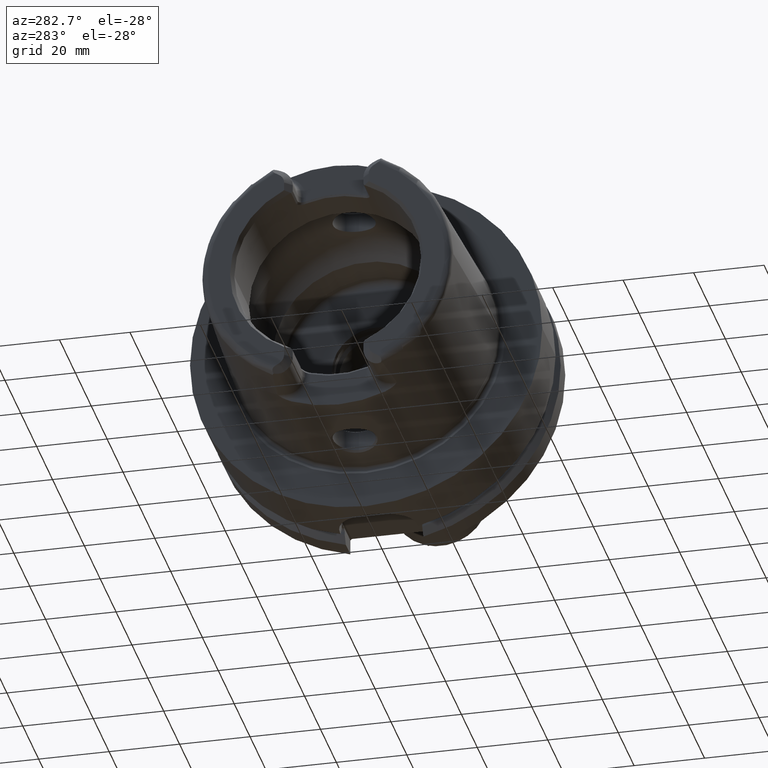
[diagram: clean part render]
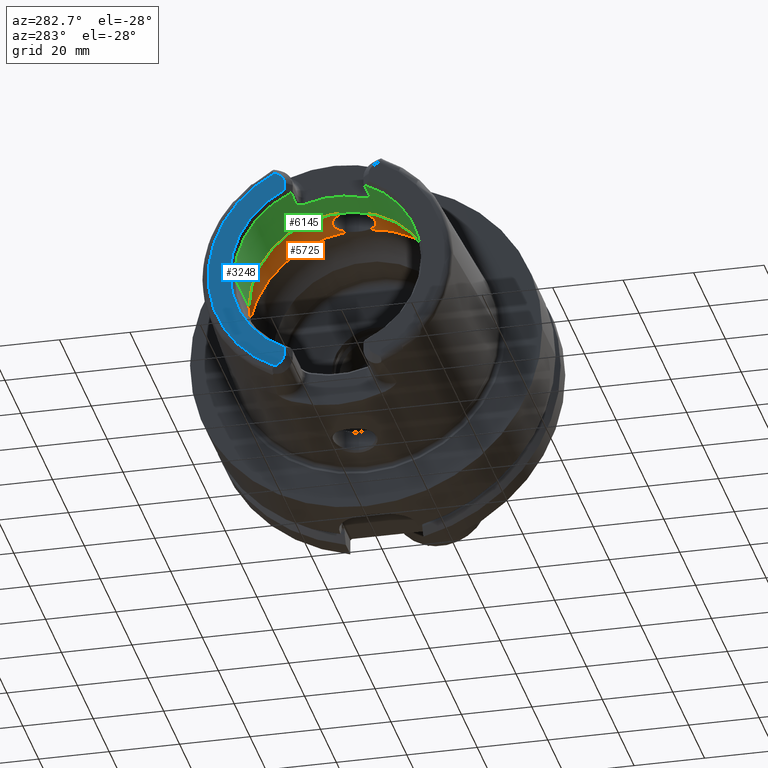
[diagram: same view with three faces highlighted in distinct colors, each labeled with its STEP entity id]
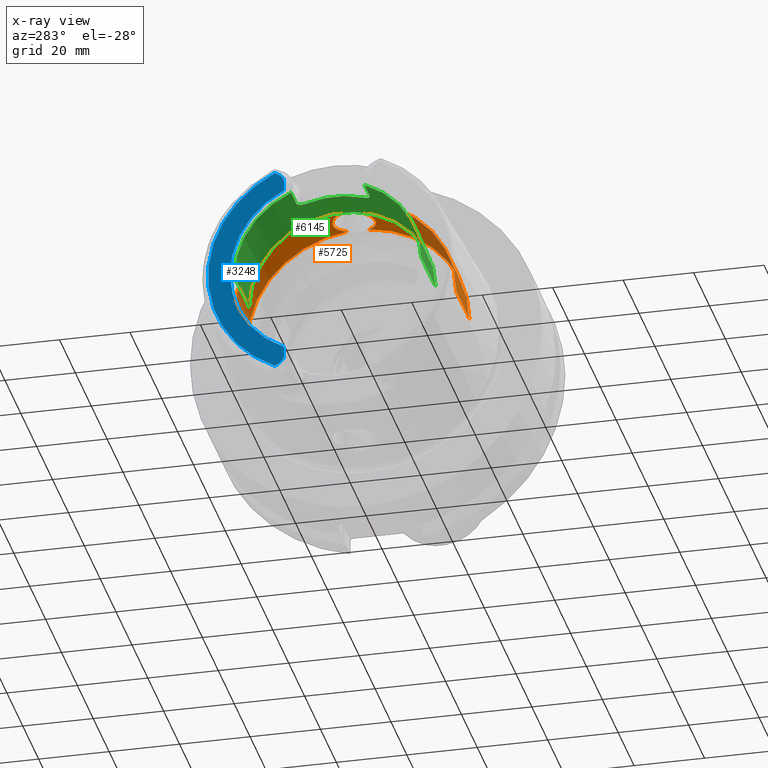
[diagram: x-ray of the same camera — body ghosted, the three highlighted faces saturated]
A machine part, auxiliary view with three faces highlighted in distinct colors.
The next image is the same camera in x-ray (body ghosted, the three faces saturated) — at least one of them is partly hidden behind the body in this view.
Their STEP definitions:

[orange] entity #5725 — the highlighted cylindrical surface (partial cylindrical patch) has radius 31.5 mm, axis along (1, 0, 0).
#2069=CARTESIAN_POINT('',(-9.846794344809E0,3.073185883624E0,3.134972932139E1));
#2071=CARTESIAN_POINT('',(-9.846794344809E0,-3.073185883624E0,
3.134972932139E1));
#2085=CARTESIAN_POINT('',(-9.846794344809E0,3.073185883624E0,3.134972932139E1));
#2086=CARTESIAN_POINT('',(-9.979350610583E0,3.295460007053E0,3.132793998818E1));
#2087=CARTESIAN_POINT('',(-1.027063887730E1,3.719249728918E0,3.128166137702E1));
#2088=CARTESIAN_POINT('',(-1.079035808135E1,4.298920478732E0,3.120689190392E1));
#2089=CARTESIAN_POINT('',(-1.137898274965E1,4.805041081809E0,3.113254787077E1));
#2090=CARTESIAN_POINT('',(-1.202658779818E1,5.230450418473E0,3.106351678434E1));
#2091=CARTESIAN_POINT('',(-1.271973952812E1,5.567575114105E0,3.100453126817E1));
#2092=CARTESIAN_POINT('',(-1.345035493347E1,5.813488696578E0,3.095911024256E1));
#2093=CARTESIAN_POINT('',(-1.420764120587E1,5.964169161635E0,3.093027187856E1));
#2094=CARTESIAN_POINT('',(-1.497984446875E1,6.016521870398E0,3.092007259785E1));
#2095=CARTESIAN_POINT('',(-1.575309935594E1,5.969543750814E0,3.092922961197E1));
#2096=CARTESIAN_POINT('',(-1.652541066125E1,5.820717381311E0,3.095775345043E1));
#2097=CARTESIAN_POINT('',(-1.727341934717E1,5.571094163642E0,3.100391709528E1));
#2098=CARTESIAN_POINT('',(-1.797719195757E1,5.228690177102E0,3.106382935769E1));
#2099=CARTESIAN_POINT('',(-1.863207171596E1,4.797562142056E0,3.113375842146E1));
#2100=CARTESIAN_POINT('',(-1.923624043330E1,4.274224967480E0,3.121040427516E1));
#2101=CARTESIAN_POINT('',(-1.976613927382E1,3.673557002686E0,3.128721124755E1));
#2102=CARTESIAN_POINT('',(-2.020637808011E1,3.016563255921E0,3.135771603394E1));
#2103=CARTESIAN_POINT('',(-2.055582787998E1,2.311076998962E0,3.141795380196E1));
#2104=CARTESIAN_POINT('',(-2.081257397864E1,1.557663843048E0,3.146462805191E1));
#2105=CARTESIAN_POINT('',(-2.096662575255E1,7.779183163064E-1,
3.149361665994E1));
#2106=CARTESIAN_POINT('',(-2.1E1,2.599995876471E-1,3.15E1));
#2107=CARTESIAN_POINT('',(-2.1E1,0.E0,3.15E1));
#2109=CARTESIAN_POINT('',(-9.846794344809E0,0.E0,0.E0));
#2110=DIRECTION('',(1.E0,0.E0,0.E0));
#2111=DIRECTION('',(0.E0,1.E0,0.E0));
#2112=AXIS2_PLACEMENT_3D('',#2109,#2110,#2111);
#2114=CARTESIAN_POINT('',(-9.846794344809E0,0.E0,0.E0));
#2115=DIRECTION('',(1.E0,0.E0,0.E0));
#2116=DIRECTION('',(0.E0,-9.756145662299E-2,9.952295022665E-1));
#2117=AXIS2_PLACEMENT_3D('',#2114,#2115,#2116);
#2119=CARTESIAN_POINT('',(-2.1E1,0.E0,3.15E1));
#2120=CARTESIAN_POINT('',(-2.1E1,-2.571227322628E-1,3.15E1));
#2121=CARTESIAN_POINT('',(-2.096736472421E1,-7.693984126219E-1,
3.149375838501E1));
#2122=CARTESIAN_POINT('',(-2.081659080202E1,-1.541049857093E0,
3.146537963405E1));
#2123=CARTESIAN_POINT('',(-2.056550243220E1,-2.286682308644E0,
3.141968549161E1));
#2124=CARTESIAN_POINT('',(-2.022340587255E1,-2.986151195866E0,
3.136058293097E1));
#2125=CARTESIAN_POINT('',(-1.979326828629E1,-3.637340617479E0,
3.129140992251E1));
#2126=CARTESIAN_POINT('',(-1.927478905529E1,-4.235071698102E0,
3.121573223434E1));
#2127=CARTESIAN_POINT('',(-1.868247740736E1,-4.758599460883E0,
3.113974969594E1));
#2128=CARTESIAN_POINT('',(-1.803686661027E1,-5.194005287447E0,
3.106967109408E1));
#2129=CARTESIAN_POINT('',(-1.734161583992E1,-5.542612510908E0,
3.100904668501E1));
#2130=CARTESIAN_POINT('',(-1.659831672384E1,-5.801097428712E0,
3.096145823760E1));
#2131=CARTESIAN_POINT('',(-1.582796267308E1,-5.959654019058E0,
3.093114785940E1));
#2132=CARTESIAN_POINT('',(-1.505461105168E1,-6.016295452388E0,
3.092011677740E1));
#2133=CARTESIAN_POINT('',(-1.428037054876E1,-5.973681036842E0,
3.092842594800E1));
#2134=CARTESIAN_POINT('',(-1.350797364848E1,-5.829331845562E0,
3.095612333536E1));
#2135=CARTESIAN_POINT('',(-1.275967231567E1,-5.584336729774E0,
3.100151619127E1));
#2136=CARTESIAN_POINT('',(-1.205825931241E1,-5.248465876117E0,
3.106046672590E1));
#2137=CARTESIAN_POINT('',(-1.140515180586E1,-4.825059400574E0,
3.112945635419E1));
#2138=CARTESIAN_POINT('',(-1.080442776173E1,-4.313579447853E0,
3.120492076547E1));
#2139=CARTESIAN_POINT('',(-1.027427619122E1,-3.724621952008E0,
3.128107616940E1));
#2140=CARTESIAN_POINT('',(-9.980265351482E0,-3.296993870656E0,
3.132778962490E1));
#2141=CARTESIAN_POINT('',(-9.846794344809E0,-3.073185883624E0,
3.134972932139E1));
#2196=DIRECTION('',(-1.E0,0.E0,0.E0));
#2197=VECTOR('',#2196,1.640380457843E1);
#2198=CARTESIAN_POINT('',(-9.846794344809E0,-3.15E1,0.E0));
#2199=LINE('',#2198,#2197);
#2200=DIRECTION('',(-1.E0,0.E0,0.E0));
#2201=VECTOR('',#2200,1.640380457843E1);
#2202=CARTESIAN_POINT('',(-9.846794344809E0,3.15E1,0.E0));
#2203=LINE('',#2202,#2201);
#2453=CARTESIAN_POINT('',(-2.625059892324E1,0.E0,0.E0));
#2454=DIRECTION('',(1.E0,0.E0,0.E0));
#2455=DIRECTION('',(0.E0,1.E0,0.E0));
#2456=AXIS2_PLACEMENT_3D('',#2453,#2454,#2455);
#2735=CARTESIAN_POINT('',(-9.846794344809E0,3.15E1,0.E0));
#2736=VERTEX_POINT('',#2735);
#2737=CARTESIAN_POINT('',(-2.625059892324E1,3.15E1,0.E0));
#2738=VERTEX_POINT('',#2737);
#2747=CARTESIAN_POINT('',(-9.846794344809E0,-3.15E1,0.E0));
#2748=VERTEX_POINT('',#2747);
#2749=CARTESIAN_POINT('',(-2.625059892324E1,-3.15E1,0.E0));
#2750=VERTEX_POINT('',#2749);
#2915=VERTEX_POINT('',#2069);
#2916=VERTEX_POINT('',#2071);
#2917=VERTEX_POINT('',#2107);
#5708=CARTESIAN_POINT('',(-5.3125E1,0.E0,0.E0));
#5709=DIRECTION('',(1.E0,0.E0,0.E0));
#5710=DIRECTION('',(0.E0,-1.E0,0.E0));
#5711=AXIS2_PLACEMENT_3D('',#5708,#5709,#5710);
#5712=CYLINDRICAL_SURFACE('',#5711,3.15E1);
#5713=ORIENTED_EDGE('',*,*,#5667,.F.);
#5714=ORIENTED_EDGE('',*,*,#5703,.F.);
#5716=ORIENTED_EDGE('',*,*,#5715,.T.);
#5718=ORIENTED_EDGE('',*,*,#5717,.T.);
#5720=ORIENTED_EDGE('',*,*,#5719,.F.);
#5721=ORIENTED_EDGE('',*,*,#5695,.F.);
#5722=ORIENTED_EDGE('',*,*,#5389,.F.);
#5723=EDGE_LOOP('',(#5713,#5714,#5716,#5718,#5720,#5721,#5722));
#5724=FACE_OUTER_BOUND('',#5723,.F.);
#5725=ADVANCED_FACE('',(#5724),#5712,.F.);
#2108=B_SPLINE_CURVE_WITH_KNOTS('',3,(#2085,#2086,#2087,#2088,#2089,#2090,#2091,
#2092,#2093,#2094,#2095,#2096,#2097,#2098,#2099,#2100,#2101,#2102,#2103,#2104,
#2105,#2106,#2107),.UNSPECIFIED.,.F.,.F.,(4,1,1,1,1,1,1,1,1,1,1,1,1,1,1,1,1,1,1,
1,4),(0.E0,5.E-2,1.E-1,1.5E-1,2.E-1,2.5E-1,3.E-1,3.5E-1,4.E-1,4.5E-1,5.E-1,
5.5E-1,6.E-1,6.5E-1,7.E-1,7.5E-1,8.E-1,8.5E-1,9.E-1,9.5E-1,1.E0),.UNSPECIFIED.);
#2113=CIRCLE('',#2112,3.15E1);
#2118=CIRCLE('',#2117,3.15E1);
#2142=B_SPLINE_CURVE_WITH_KNOTS('',3,(#2119,#2120,#2121,#2122,#2123,#2124,#2125,
#2126,#2127,#2128,#2129,#2130,#2131,#2132,#2133,#2134,#2135,#2136,#2137,#2138,
#2139,#2140,#2141),.UNSPECIFIED.,.F.,.F.,(4,1,1,1,1,1,1,1,1,1,1,1,1,1,1,1,1,1,1,
1,4),(0.E0,5.E-2,1.E-1,1.5E-1,2.E-1,2.5E-1,3.E-1,3.5E-1,4.E-1,4.5E-1,5.E-1,
5.5E-1,6.E-1,6.5E-1,7.E-1,7.5E-1,8.E-1,8.5E-1,9.E-1,9.5E-1,1.E0),.UNSPECIFIED.);
#2457=CIRCLE('',#2456,3.15E1);
#5389=EDGE_CURVE('',#2917,#2916,#2142,.T.);
#5667=EDGE_CURVE('',#2915,#2917,#2108,.T.);
#5695=EDGE_CURVE('',#2916,#2748,#2118,.T.);
#5703=EDGE_CURVE('',#2736,#2915,#2113,.T.);
#5715=EDGE_CURVE('',#2736,#2738,#2203,.T.);
#5717=EDGE_CURVE('',#2738,#2750,#2457,.T.);
#5719=EDGE_CURVE('',#2748,#2750,#2199,.T.);

[blue] entity #3248 — the highlighted planar face has unit normal (1, 0, 0).
#100=DIRECTION('',(0.E0,0.E0,1.E0));
#101=VECTOR('',#100,2.370180025047E0);
#102=CARTESIAN_POINT('',(-5.E1,1.201E1,-2.696E1));
#103=LINE('',#102,#101);
#104=CARTESIAN_POINT('',(-5.E1,1.501E1,-2.696E1));
#105=DIRECTION('',(1.E0,0.E0,0.E0));
#106=DIRECTION('',(0.E0,-1.E0,0.E0));
#107=AXIS2_PLACEMENT_3D('',#104,#105,#106);
#109=DIRECTION('',(0.E0,-8.533905854017E-1,5.212720103245E-1));
#110=VECTOR('',#109,1.392150953463E0);
#111=CARTESIAN_POINT('',(-5.E1,1.463423248617E1,-3.024586108239E1));
#112=LINE('',#111,#110);
#113=DIRECTION('',(0.E0,-8.533905854017E-1,-5.212720103245E-1));
#114=VECTOR('',#113,1.392150953463E0);
#115=CARTESIAN_POINT('',(-5.E1,1.463423248617E1,3.024586108239E1));
#116=LINE('',#115,#114);
#117=CARTESIAN_POINT('',(-5.E1,1.501E1,2.696E1));
#118=DIRECTION('',(-1.E0,0.E0,0.E0));
#119=DIRECTION('',(0.E0,-1.E0,0.E0));
#120=AXIS2_PLACEMENT_3D('',#117,#118,#119);
#122=DIRECTION('',(0.E0,0.E0,1.E0));
#123=VECTOR('',#122,2.370180025047E0);
#124=CARTESIAN_POINT('',(-5.E1,1.201E1,2.458981997495E1));
#125=LINE('',#124,#123);
#157=CARTESIAN_POINT('',(-5.E1,0.E0,0.E0));
#158=DIRECTION('',(1.E0,0.E0,0.E0));
#159=DIRECTION('',(0.E0,4.388653384185E-1,-8.985528447091E-1));
#160=AXIS2_PLACEMENT_3D('',#157,#158,#159);
#340=CARTESIAN_POINT('',(-5.E1,0.E0,0.E0));
#341=DIRECTION('',(-1.E0,0.E0,0.E0));
#342=DIRECTION('',(0.E0,4.355401503799E-1,9.001693048572E-1));
#343=AXIS2_PLACEMENT_3D('',#340,#341,#342);
#2783=CARTESIAN_POINT('',(-5.E1,1.201E1,2.458981997495E1));
#2784=CARTESIAN_POINT('',(-5.E1,1.201E1,2.696E1));
#2785=VERTEX_POINT('',#2783);
#2786=VERTEX_POINT('',#2784);
#2787=CARTESIAN_POINT('',(-5.E1,1.344618396903E1,2.952017175621E1));
#2788=VERTEX_POINT('',#2787);
#2789=CARTESIAN_POINT('',(-5.E1,1.463423248617E1,3.024586108239E1));
#2790=VERTEX_POINT('',#2789);
#2874=CARTESIAN_POINT('',(-5.E1,1.201E1,-2.696E1));
#2875=CARTESIAN_POINT('',(-5.E1,1.201E1,-2.458981997495E1));
#2876=VERTEX_POINT('',#2874);
#2877=VERTEX_POINT('',#2875);
#2878=CARTESIAN_POINT('',(-5.E1,1.344618396903E1,-2.952017175621E1));
#2879=VERTEX_POINT('',#2878);
#2880=CARTESIAN_POINT('',(-5.E1,1.463423248617E1,-3.024586108239E1));
#2881=VERTEX_POINT('',#2880);
#3225=CARTESIAN_POINT('',(-5.E1,0.E0,0.E0));
#3226=DIRECTION('',(1.E0,0.E0,0.E0));
#3227=DIRECTION('',(0.E0,-1.E0,0.E0));
#3228=AXIS2_PLACEMENT_3D('',#3225,#3226,#3227);
#3229=PLANE('',#3228);
#3231=ORIENTED_EDGE('',*,*,#3230,.F.);
#3233=ORIENTED_EDGE('',*,*,#3232,.T.);
#3235=ORIENTED_EDGE('',*,*,#3234,.F.);
#3237=ORIENTED_EDGE('',*,*,#3236,.F.);
#3239=ORIENTED_EDGE('',*,*,#3238,.T.);
#3241=ORIENTED_EDGE('',*,*,#3240,.F.);
#3243=ORIENTED_EDGE('',*,*,#3242,.F.);
#3245=ORIENTED_EDGE('',*,*,#3244,.F.);
#3246=EDGE_LOOP('',(#3231,#3233,#3235,#3237,#3239,#3241,#3243,#3245));
#3247=FACE_OUTER_BOUND('',#3246,.F.);
#3248=ADVANCED_FACE('',(#3247),#3229,.F.);
#108=CIRCLE('',#107,3.E0);
#121=CIRCLE('',#120,3.E0);
#161=CIRCLE('',#160,2.736602540378E1);
#344=CIRCLE('',#343,3.360019156306E1);
#3230=EDGE_CURVE('',#2876,#2877,#103,.T.);
#3232=EDGE_CURVE('',#2876,#2879,#108,.T.);
#3234=EDGE_CURVE('',#2881,#2879,#112,.T.);
#3236=EDGE_CURVE('',#2790,#2881,#344,.T.);
#3238=EDGE_CURVE('',#2790,#2788,#116,.T.);
#3240=EDGE_CURVE('',#2786,#2788,#121,.T.);
#3242=EDGE_CURVE('',#2785,#2786,#125,.T.);
#3244=EDGE_CURVE('',#2877,#2785,#161,.T.);

[green] entity #6145 — the highlighted cylindrical surface (partial cylindrical patch) has radius 26.5 mm, axis along (1, 0, 0).
#165=CARTESIAN_POINT('',(-4.85E1,1.051E1,2.432673220965E1));
#167=CARTESIAN_POINT('',(-4.85E1,0.E0,0.E0));
#168=DIRECTION('',(1.E0,0.E0,0.E0));
#169=DIRECTION('',(0.E0,1.E0,0.E0));
#170=AXIS2_PLACEMENT_3D('',#167,#168,#169);
#187=CARTESIAN_POINT('',(-4.85E1,0.E0,0.E0));
#188=DIRECTION('',(1.E0,0.E0,0.E0));
#189=DIRECTION('',(0.E0,-3.966037735849E-1,9.179898947038E-1));
#190=AXIS2_PLACEMENT_3D('',#187,#188,#189);
#192=CARTESIAN_POINT('',(-4.85E1,-1.051E1,2.432673220965E1));
#513=DIRECTION('',(-1.E0,0.E0,0.E0));
#514=VECTOR('',#513,1.849662432703E1);
#515=CARTESIAN_POINT('',(-3.000337567297E1,2.65E1,0.E0));
#516=LINE('',#515,#514);
#522=DIRECTION('',(-1.E0,0.E0,0.E0));
#523=VECTOR('',#522,1.849662432703E1);
#524=CARTESIAN_POINT('',(-3.000337567297E1,-2.65E1,0.E0));
#525=LINE('',#524,#523);
#2476=DIRECTION('',(1.E0,0.E0,0.E0));
#2477=VECTOR('',#2476,6.380229667746E0);
#2478=CARTESIAN_POINT('',(-4.838022966775E1,1.039022966775E1,2.437812805470E1));
#2479=LINE('',#2478,#2477);
#2480=CARTESIAN_POINT('',(-3.971132486541E1,8.01E0,2.526044140549E1));
#2481=CARTESIAN_POINT('',(-3.970878365387E1,8.120563234658E0,2.522538218006E1));
#2482=CARTESIAN_POINT('',(-3.971906599640E1,8.340498761E0,2.515406323082E1));
#2483=CARTESIAN_POINT('',(-3.978267622202E1,8.672586520936E0,2.504149237513E1));
#2484=CARTESIAN_POINT('',(-3.989268945815E1,8.989467647893E0,2.492938353432E1));
#2485=CARTESIAN_POINT('',(-4.004052322956E1,9.277750297847E0,2.482340953473E1));
#2486=CARTESIAN_POINT('',(-4.022199090024E1,9.537479373845E0,2.472468297046E1));
#2487=CARTESIAN_POINT('',(-4.043924040036E1,9.773195748073E0,2.463237051391E1));
#2488=CARTESIAN_POINT('',(-4.069196362011E1,9.980705213938E0,2.454892857931E1));
#2489=CARTESIAN_POINT('',(-4.098453186625E1,1.015759575717E1,2.447617541728E1));
#2490=CARTESIAN_POINT('',(-4.132143240488E1,1.029570459017E1,2.441829554688E1));
#2491=CARTESIAN_POINT('',(-4.167918985613E1,1.037618705973E1,2.438412368561E1));
#2492=CARTESIAN_POINT('',(-4.189481839478E1,1.039022966775E1,2.437812805470E1));
#2493=CARTESIAN_POINT('',(-4.2E1,1.039022966775E1,2.437812805470E1));
#2495=CARTESIAN_POINT('',(-3.971132486541E1,-8.01E0,2.526044140549E1));
#2496=CARTESIAN_POINT('',(-3.971132486541E1,-7.271271578955E0,
2.549468967366E1));
#2497=CARTESIAN_POINT('',(-3.971132486546E1,-5.773250992792E0,
2.589833317849E1));
#2498=CARTESIAN_POINT('',(-3.971132486544E1,-3.481810319461E0,
2.630458298809E1));
#2499=CARTESIAN_POINT('',(-3.971132486544E1,-1.163586982585E0,
2.650849211583E1));
#2500=CARTESIAN_POINT('',(-3.971132486544E1,1.163586982585E0,2.650849211583E1));
#2501=CARTESIAN_POINT('',(-3.971132486544E1,3.481810319461E0,2.630458298809E1));
#2502=CARTESIAN_POINT('',(-3.971132486546E1,5.773250992791E0,2.589833317849E1));
#2503=CARTESIAN_POINT('',(-3.971132486541E1,7.271271578958E0,2.549468967366E1));
#2504=CARTESIAN_POINT('',(-3.971132486541E1,8.01E0,2.526044140549E1));
#2506=CARTESIAN_POINT('',(-4.2E1,-1.039022966775E1,2.437812805470E1));
#2507=CARTESIAN_POINT('',(-4.189375760304E1,-1.039022966775E1,
2.437812805470E1));
#2508=CARTESIAN_POINT('',(-4.167635124759E1,-1.037592175927E1,
2.438423721529E1));
#2509=CARTESIAN_POINT('',(-4.131623052643E1,-1.029415408513E1,
2.441895189414E1));
#2510=CARTESIAN_POINT('',(-4.097947032639E1,-1.015497495082E1,
2.447726388108E1));
#2511=CARTESIAN_POINT('',(-4.068903934051E1,-9.978495762119E0,
2.454982411868E1));
#2512=CARTESIAN_POINT('',(-4.043805179144E1,-9.771970406757E0,
2.463285308238E1));
#2513=CARTESIAN_POINT('',(-4.022178538202E1,-9.537157318169E0,
2.472480442904E1));
#2514=CARTESIAN_POINT('',(-4.004048499348E1,-9.277715471543E0,
2.482342368645E1));
#2515=CARTESIAN_POINT('',(-3.989237648633E1,-8.988811706632E0,
2.492962282131E1));
#2516=CARTESIAN_POINT('',(-3.978230284625E1,-8.671343229942E0,
2.504192722240E1));
#2517=CARTESIAN_POINT('',(-3.971884880625E1,-8.338547582645E0,
2.515470883480E1));
#2518=CARTESIAN_POINT('',(-3.970880260289E1,-8.119738798873E0,
2.522564360584E1));
#2519=CARTESIAN_POINT('',(-3.971132486541E1,-8.01E0,2.526044140549E1));
#2521=DIRECTION('',(1.E0,0.E0,0.E0));
#2522=VECTOR('',#2521,6.380229667746E0);
#2523=CARTESIAN_POINT('',(-4.838022966775E1,-1.039022966775E1,
2.437812805470E1));
#2524=LINE('',#2523,#2522);
#2525=CARTESIAN_POINT('',(-4.838022966775E1,-1.039022966775E1,
2.437812805470E1));
#2526=CARTESIAN_POINT('',(-4.842017594144E1,-1.043017594144E1,
2.436110250799E1));
#2527=CARTESIAN_POINT('',(-4.846009940760E1,-1.047009940760E1,
2.434397066250E1));
#2528=CARTESIAN_POINT('',(-4.85E1,-1.051E1,2.432673220965E1));
#2530=CARTESIAN_POINT('',(-3.000337567297E1,0.E0,0.E0));
#2531=DIRECTION('',(1.E0,0.E0,0.E0));
#2532=DIRECTION('',(0.E0,1.E0,0.E0));
#2533=AXIS2_PLACEMENT_3D('',#2530,#2531,#2532);
#2535=CARTESIAN_POINT('',(-4.85E1,1.051E1,2.432673220965E1));
#2536=CARTESIAN_POINT('',(-4.846009940760E1,1.047009940760E1,2.434397066250E1));
#2537=CARTESIAN_POINT('',(-4.842017594144E1,1.043017594144E1,2.436110250799E1));
#2538=CARTESIAN_POINT('',(-4.838022966775E1,1.039022966775E1,2.437812805470E1));
#2741=CARTESIAN_POINT('',(-3.000337567297E1,2.65E1,0.E0));
#2742=VERTEX_POINT('',#2741);
#2743=CARTESIAN_POINT('',(-4.85E1,2.65E1,0.E0));
#2744=VERTEX_POINT('',#2743);
#2753=CARTESIAN_POINT('',(-3.000337567297E1,-2.65E1,0.E0));
#2754=VERTEX_POINT('',#2753);
#2755=CARTESIAN_POINT('',(-4.85E1,-2.65E1,0.E0));
#2756=VERTEX_POINT('',#2755);
#2797=VERTEX_POINT('',#165);
#2812=VERTEX_POINT('',#192);
#2825=CARTESIAN_POINT('',(-4.2E1,1.039022966775E1,2.437812805470E1));
#2826=VERTEX_POINT('',#2825);
#2827=CARTESIAN_POINT('',(-3.971132486541E1,8.01E0,2.526044140549E1));
#2828=VERTEX_POINT('',#2827);
#2829=CARTESIAN_POINT('',(-4.2E1,-1.039022966775E1,2.437812805470E1));
#2830=VERTEX_POINT('',#2829);
#2831=CARTESIAN_POINT('',(-3.971132486541E1,-8.01E0,2.526044140549E1));
#2832=VERTEX_POINT('',#2831);
#2833=CARTESIAN_POINT('',(-4.838022966775E1,1.039022966775E1,2.437812805470E1));
#2834=VERTEX_POINT('',#2833);
#2835=CARTESIAN_POINT('',(-4.838022966775E1,-1.039022966775E1,
2.437812805470E1));
#2836=VERTEX_POINT('',#2835);
#6121=CARTESIAN_POINT('',(-5.3125E1,0.E0,0.E0));
#6122=DIRECTION('',(1.E0,0.E0,0.E0));
#6123=DIRECTION('',(0.E0,-1.E0,0.E0));
#6124=AXIS2_PLACEMENT_3D('',#6121,#6122,#6123);
#6125=CYLINDRICAL_SURFACE('',#6124,2.65E1);
#6126=ORIENTED_EDGE('',*,*,#3351,.T.);
#6128=ORIENTED_EDGE('',*,*,#6127,.F.);
#6130=ORIENTED_EDGE('',*,*,#6129,.F.);
#6132=ORIENTED_EDGE('',*,*,#6131,.F.);
#6134=ORIENTED_EDGE('',*,*,#6133,.F.);
#6136=ORIENTED_EDGE('',*,*,#6135,.T.);
#6137=ORIENTED_EDGE('',*,*,#3316,.T.);
#6138=ORIENTED_EDGE('',*,*,#3578,.F.);
#6139=ORIENTED_EDGE('',*,*,#6101,.F.);
#6140=ORIENTED_EDGE('',*,*,#3574,.T.);
#6141=ORIENTED_EDGE('',*,*,#3300,.T.);
#6142=ORIENTED_EDGE('',*,*,#3331,.T.);
#6143=EDGE_LOOP('',(#6126,#6128,#6130,#6132,#6134,#6136,#6137,#6138,#6139,#6140,
#6141,#6142));
#6144=FACE_OUTER_BOUND('',#6143,.F.);
#6145=ADVANCED_FACE('',(#6144),#6125,.F.);
#171=CIRCLE('',#170,2.65E1);
#191=CIRCLE('',#190,2.65E1);
#2494=B_SPLINE_CURVE_WITH_KNOTS('',3,(#2480,#2481,#2482,#2483,#2484,#2485,#2486,
#2487,#2488,#2489,#2490,#2491,#2492,#2493),.UNSPECIFIED.,.F.,.F.,(4,1,1,1,1,1,1,
1,1,1,1,4),(0.E0,9.090909090909E-2,1.818181818182E-1,2.727272727273E-1,
3.636363636364E-1,4.545454545455E-1,5.454545454545E-1,6.363636363636E-1,
7.272727272727E-1,8.181818181818E-1,9.090909090909E-1,1.E0),.UNSPECIFIED.);
#2505=B_SPLINE_CURVE_WITH_KNOTS('',3,(#2495,#2496,#2497,#2498,#2499,#2500,#2501,
#2502,#2503,#2504),.UNSPECIFIED.,.F.,.F.,(4,1,1,1,1,1,1,4),(0.E0,
1.428571428571E-1,2.857142857143E-1,4.285714285714E-1,5.714285714286E-1,
7.142857142857E-1,8.571428571429E-1,1.E0),.UNSPECIFIED.);
#2520=B_SPLINE_CURVE_WITH_KNOTS('',3,(#2506,#2507,#2508,#2509,#2510,#2511,#2512,
#2513,#2514,#2515,#2516,#2517,#2518,#2519),.UNSPECIFIED.,.F.,.F.,(4,1,1,1,1,1,1,
1,1,1,1,4),(0.E0,9.090909090909E-2,1.818181818182E-1,2.727272727273E-1,
3.636363636364E-1,4.545454545455E-1,5.454545454545E-1,6.363636363636E-1,
7.272727272727E-1,8.181818181818E-1,9.090909090909E-1,1.E0),.UNSPECIFIED.);
#2529=B_SPLINE_CURVE_WITH_KNOTS('',3,(#2525,#2526,#2527,#2528),.UNSPECIFIED.,
.F.,.F.,(4,4),(0.E0,1.E0),.UNSPECIFIED.);
#2534=CIRCLE('',#2533,2.65E1);
#2539=B_SPLINE_CURVE_WITH_KNOTS('',3,(#2535,#2536,#2537,#2538),.UNSPECIFIED.,
.F.,.F.,(4,4),(0.E0,1.E0),.UNSPECIFIED.);
#3300=EDGE_CURVE('',#2744,#2797,#171,.T.);
#3316=EDGE_CURVE('',#2812,#2756,#191,.T.);
#3331=EDGE_CURVE('',#2797,#2834,#2539,.T.);
#3351=EDGE_CURVE('',#2834,#2826,#2479,.T.);
#3574=EDGE_CURVE('',#2742,#2744,#516,.T.);
#3578=EDGE_CURVE('',#2754,#2756,#525,.T.);
#6101=EDGE_CURVE('',#2742,#2754,#2534,.T.);
#6127=EDGE_CURVE('',#2828,#2826,#2494,.T.);
#6129=EDGE_CURVE('',#2832,#2828,#2505,.T.);
#6131=EDGE_CURVE('',#2830,#2832,#2520,.T.);
#6133=EDGE_CURVE('',#2836,#2830,#2524,.T.);
#6135=EDGE_CURVE('',#2836,#2812,#2529,.T.);